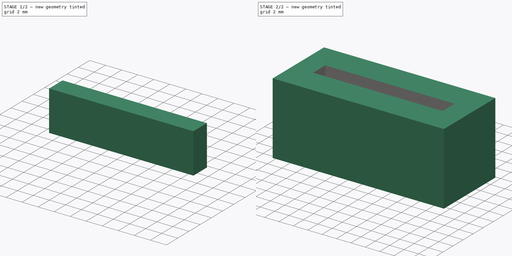
[diagram: build sequence overview — one tinted view per stage of 2, left to right]
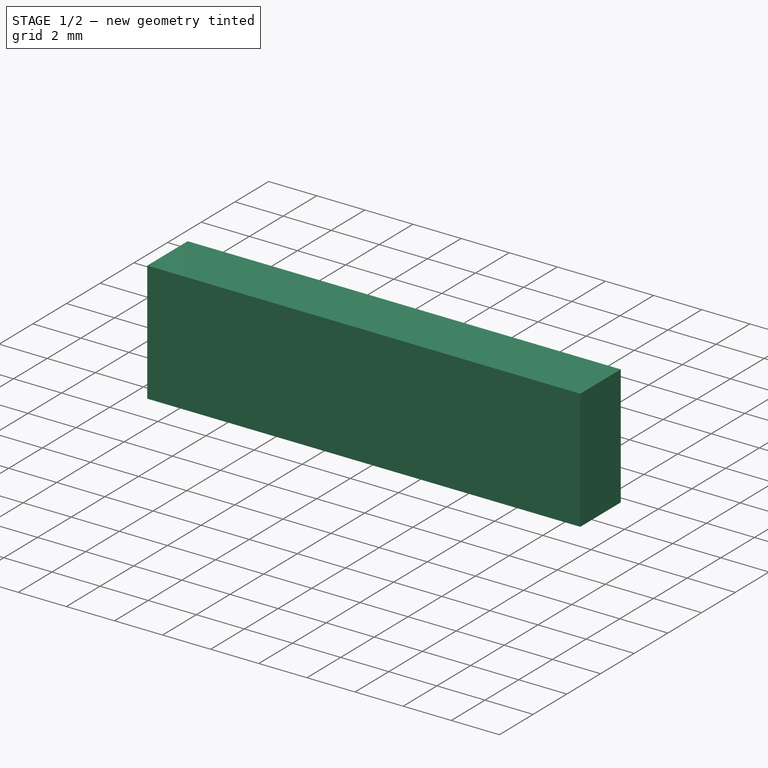
[diagram: stage 1 of 2 — iso view after this stage's code; geometry added in this stage tinted green]
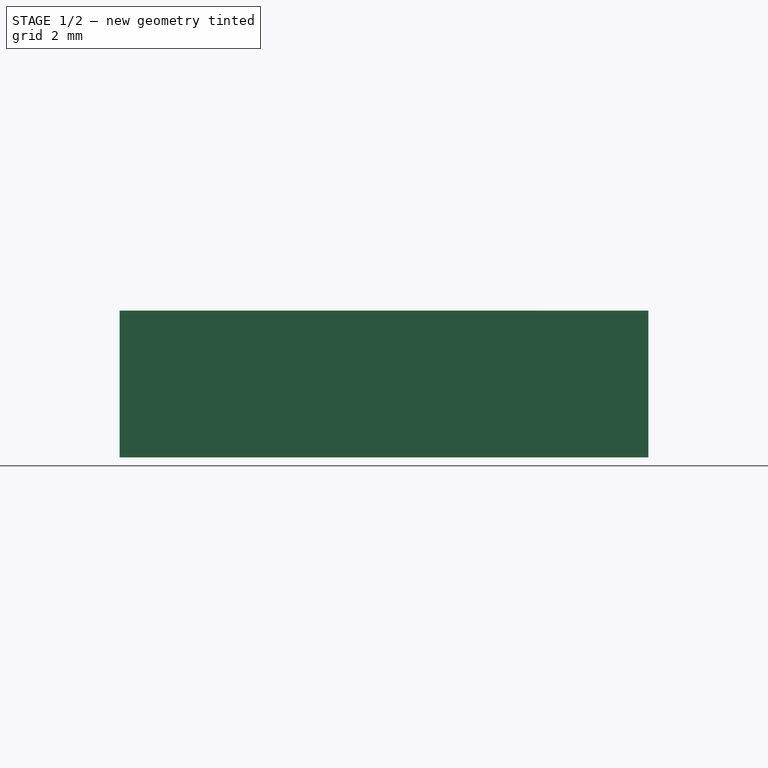
[diagram: stage 1 of 2 — front view after this stage's code; geometry added in this stage tinted green]
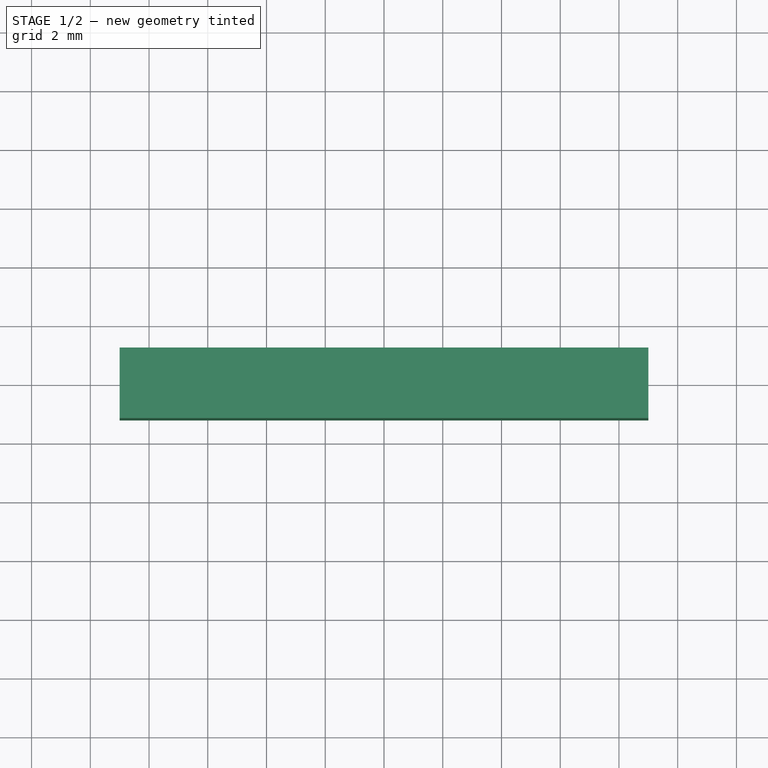
[diagram: stage 1 of 2 — top view after this stage's code; geometry added in this stage tinted green]
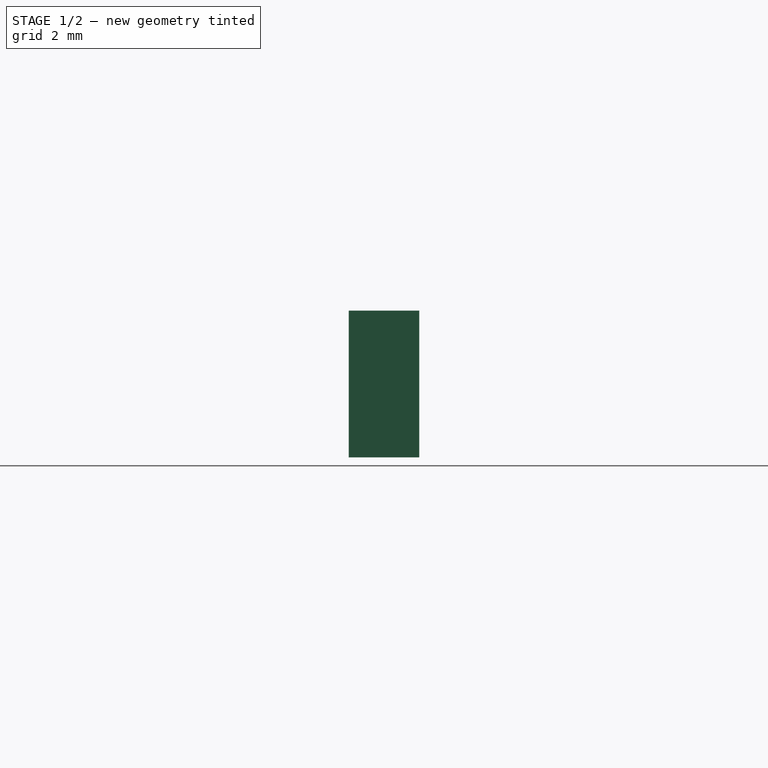
[diagram: stage 1 of 2 — right view after this stage's code; geometry added in this stage tinted green]
FCSTD DOCUMENT  (FreeCAD 0.19R)
Label: upper-stage-1-tool-thumbsaver
License: All rights reserved
LicenseURL: http://en.wikipedia.org/wiki/All_rights_reserved
objects: Sketcher::SketchObject×2, Part::Extrusion×2, Spreadsheet::Sheet×1, Part::Cut×1
note: 5 computed .brp shape members not serialized (recipe doc carries the construction recipe); baked Part::Feature solids carry a one-line shape summary decoded from their .brp

FEATURE [Spreadsheet::Sheet] Spreadsheet  label="given"
  cells = A1=tool_width; B1(tool_width)=17.8; A2=tool_thickness; B2(tool_thickness)=2.2; A3=clearance; B3(clearance)=0.1; A4=slot_width; B4(slot_width)==tool_width + 2 * clearance; A5=slot_height; B5(slot_height)==tool_thickness + 2 * clearance; A6=slot_depth; B6(slot_depth)=5; A7=width; B7(width)==tool_width + 2 * 3; A8=thickness; B8(thickness)==tool_thickness + 2 * 4; A9=length; B9(length)=10
FEATURE [Sketcher::SketchObject] Sketch
  FullyConstrained = true
  expr: Constraints[10] = <<given>>.thickness
  expr: Constraints[9] = <<given>>.width
  sketch-geometry (4):
    g0: LineSegment StartX=-11.9 StartY=-5.1 StartZ=0 EndX=11.9 EndY=-5.1 EndZ=0
    g1: LineSegment StartX=11.9 StartY=-5.1 StartZ=0 EndX=11.9 EndY=5.1 EndZ=0
    g2: LineSegment StartX=11.9 StartY=5.1 StartZ=0 EndX=-11.9 EndY=5.1 EndZ=0
    g3: LineSegment StartX=-11.9 StartY=5.1 StartZ=0 EndX=-11.9 EndY=-5.1 EndZ=0
  constraints (11):
    c: Coincident(g0,g1)
    c: Coincident(g1,g2)
    c: Coincident(g2,g3)
    c: Coincident(g3,g0)
    c: Horizontal(g0)
    c: Horizontal(g2)
    c: Vertical(g1)
    c: Vertical(g3)
    c: Symmetric(g0,g1,g-1)
    c: Distance(g0) = 23.8
    c: Distance(g3) = 10.2
FEATURE [Part::Extrusion] Extrude
  Base = -> Sketch
  Dir = (0,0,1)
  DirMode = 2
  FaceMakerClass = Part::FaceMakerBullseye
  LengthFwd = 10
  LengthRev = 0
  Solid = true
  Symmetric = false
  expr: LengthFwd = <<given>>.length
FEATURE [Sketcher::SketchObject] Sketch001
  FullyConstrained = true
  MapMode = 5
  Placement = pos=(0,0,10) rot=(0,0,1;0rad)
  Support = -> [Extrude]
  expr: Constraints[10] = <<given>>.slot_height
  expr: Constraints[9] = <<given>>.slot_width
  sketch-geometry (4):
    g0: LineSegment StartX=-9 StartY=-1.2 StartZ=0 EndX=9 EndY=-1.2 EndZ=0
    g1: LineSegment StartX=9 StartY=-1.2 StartZ=0 EndX=9 EndY=1.2 EndZ=0
    g2: LineSegment StartX=9 StartY=1.2 StartZ=0 EndX=-9 EndY=1.2 EndZ=0
    g3: LineSegment StartX=-9 StartY=1.2 StartZ=0 EndX=-9 EndY=-1.2 EndZ=0
  constraints (11):
    c: Coincident(g0,g1)
    c: Coincident(g1,g2)
    c: Coincident(g2,g3)
    c: Coincident(g3,g0)
    c: Horizontal(g0)
    c: Horizontal(g2)
    c: Vertical(g1)
    c: Vertical(g3)
    c: Symmetric(g0,g1,g-1)
    c: Distance(g0) = 18
    c: Distance(g3) = 2.4
FEATURE [Part::Extrusion] Extrude001
  Base = -> Sketch001
  Dir = (0,0,1)
  DirMode = 2
  FaceMakerClass = Part::FaceMakerBullseye
  LengthFwd = 5
  LengthRev = 0
  Reversed = true
  Solid = true
  Symmetric = false
  expr: LengthFwd = <<given>>.slot_depth
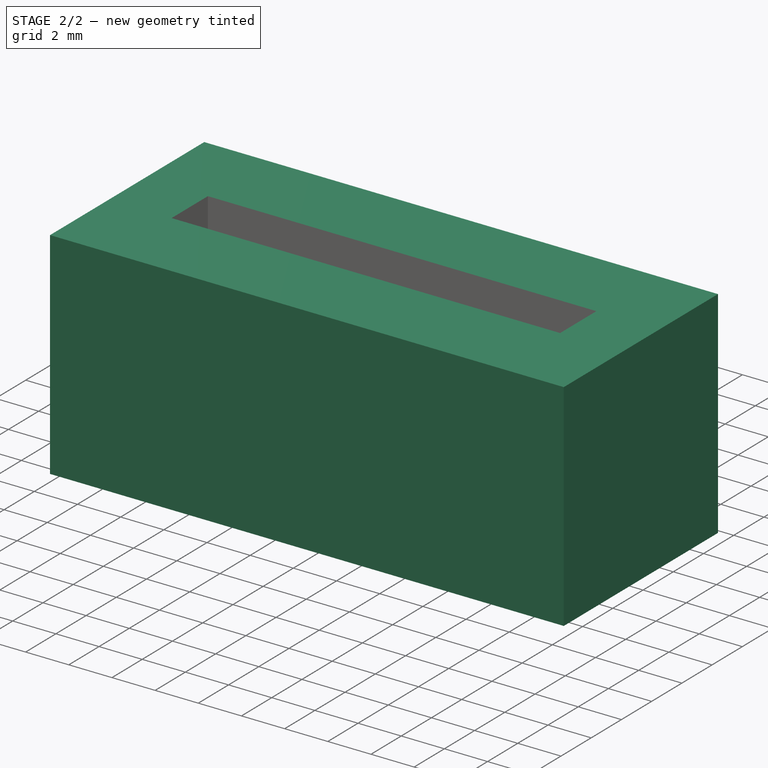
[diagram: stage 2 of 2 — iso view after this stage's code; geometry added in this stage tinted green]
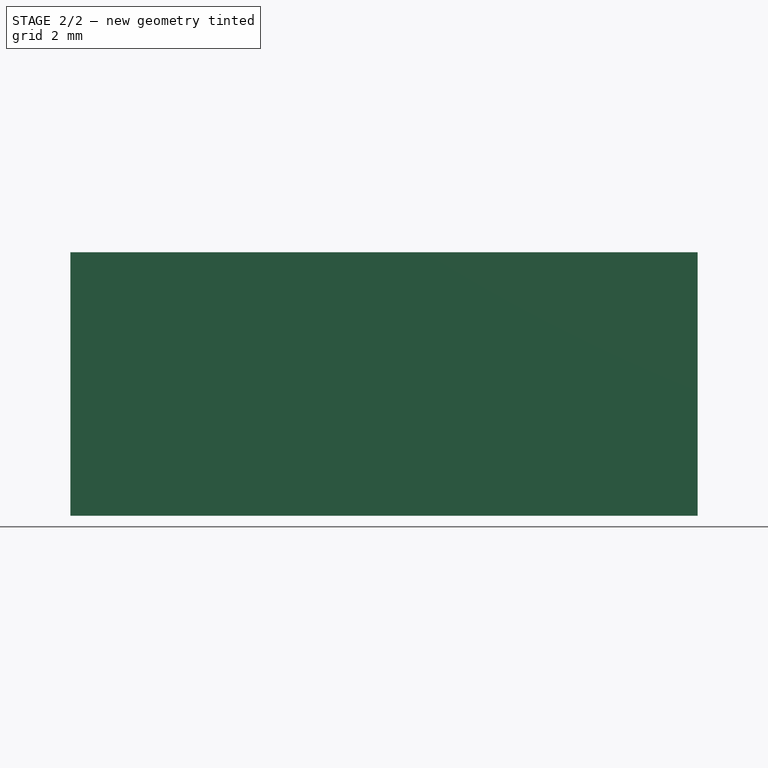
[diagram: stage 2 of 2 — front view after this stage's code; geometry added in this stage tinted green]
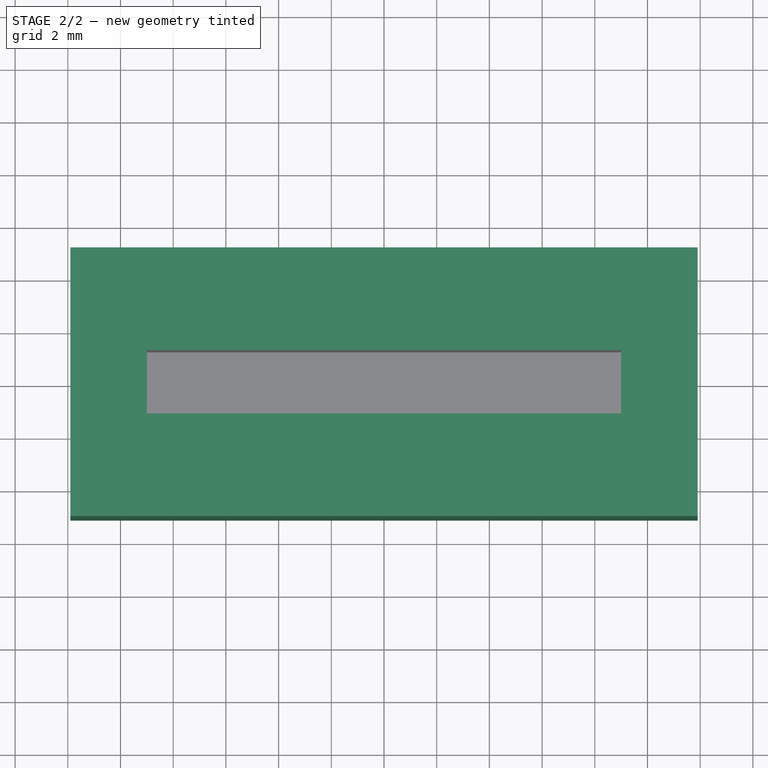
[diagram: stage 2 of 2 — top view after this stage's code; geometry added in this stage tinted green]
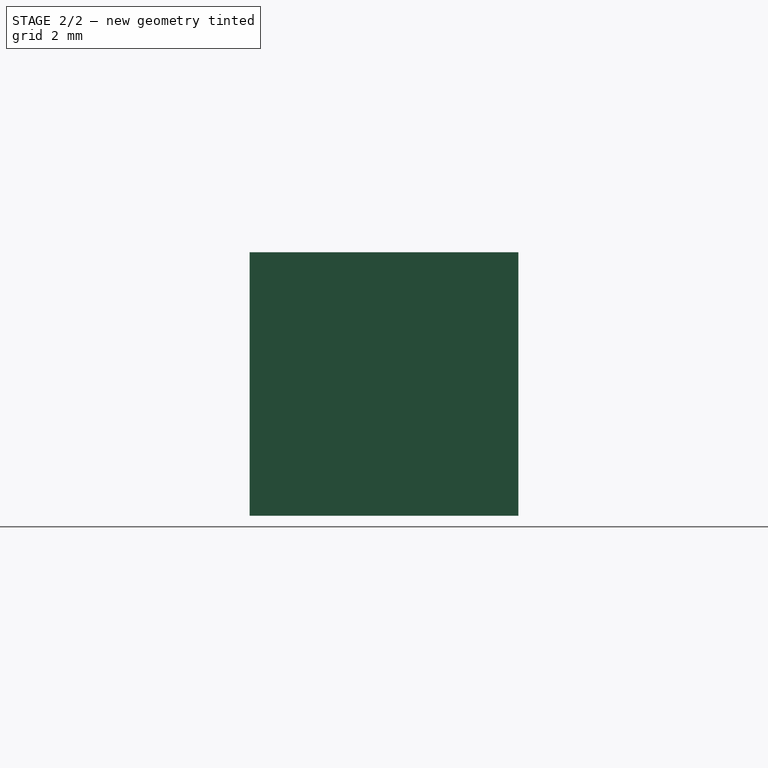
[diagram: stage 2 of 2 — right view after this stage's code; geometry added in this stage tinted green]
FEATURE [Part::Cut] Cut
  Base = -> Extrude
  Tool = -> Extrude001
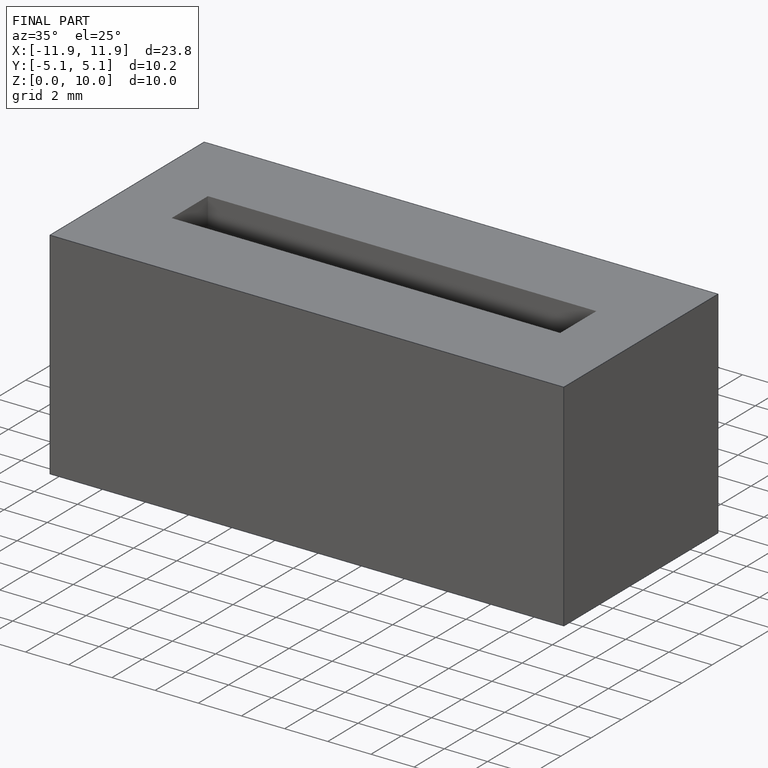
[diagram: finished part — iso view with bounding-box wireframe]
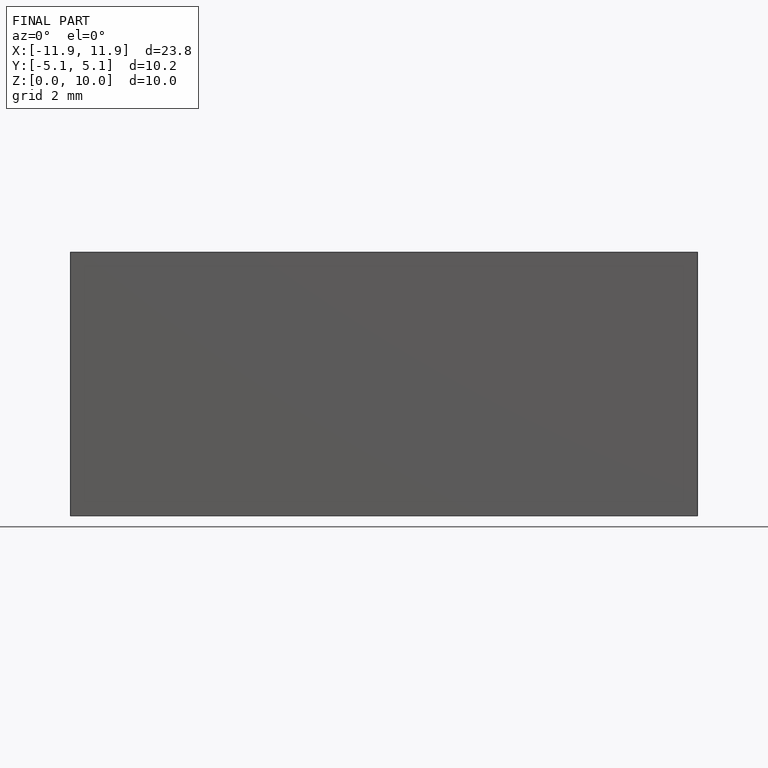
[diagram: finished part — front view with bounding-box wireframe]
